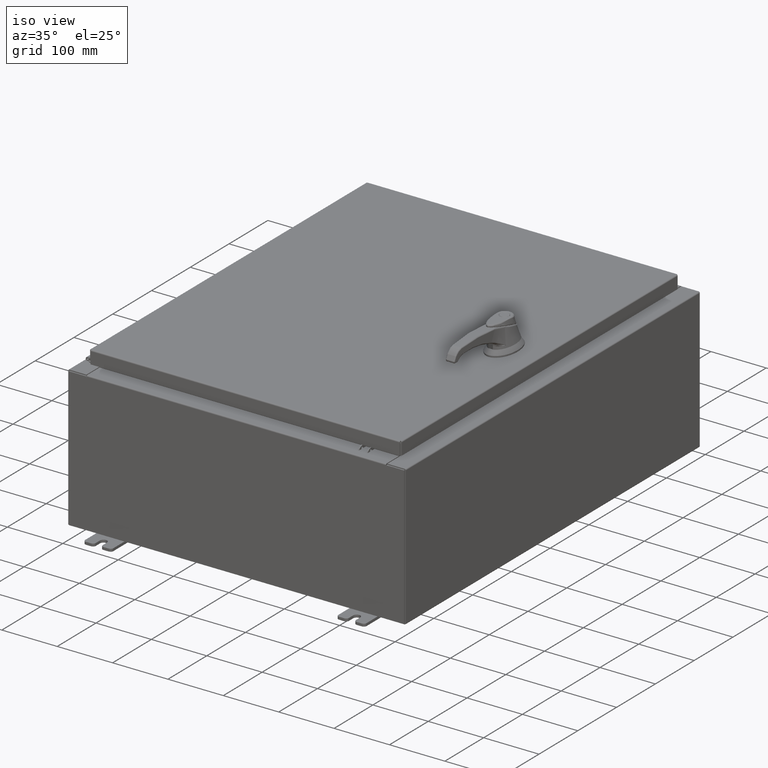
[diagram: clean part render]
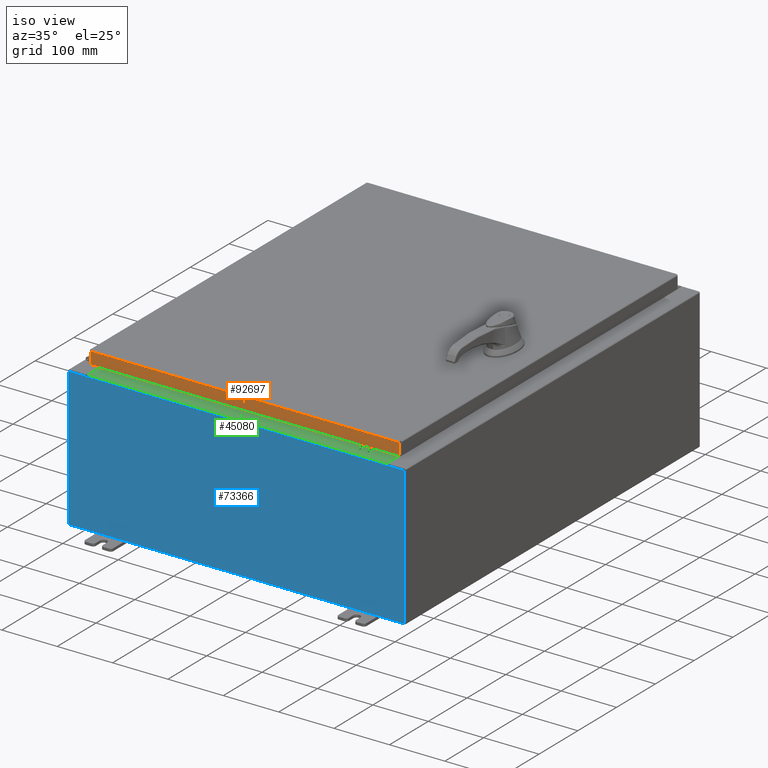
[diagram: same view with three faces highlighted in distinct colors, each labeled with its STEP entity id]
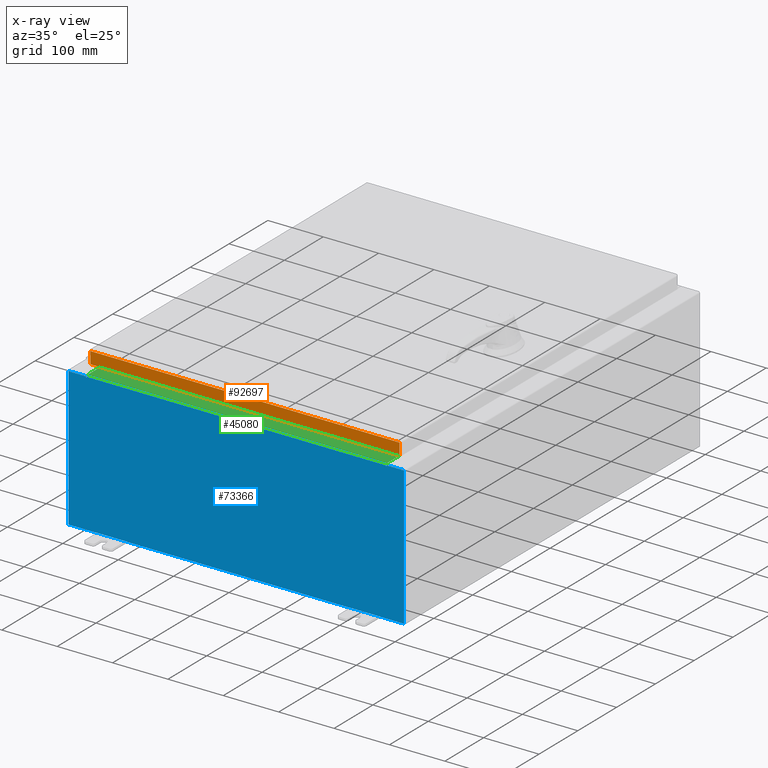
[diagram: x-ray of the same camera — body ghosted, the three highlighted faces saturated]
A machine part, iso view with three faces highlighted in distinct colors.
The next image is the same camera in x-ray (body ghosted, the three faces saturated) — at least one of them is partly hidden behind the body in this view.
Their STEP definitions:

[orange] entity #92697 — the highlighted planar face has unit normal (0, 1, -0).
#1595 = CARTESIAN_POINT ( 'NONE',  ( -10.98915786437626900, -14.09399999999999900, 3.595274007335028100E-014 ) ) ;
#10454 = LINE ( 'NONE', #25992, #58440 ) ;
#11060 = ORIENTED_EDGE ( 'NONE', *, *, #58870, .F. ) ;
#13251 = CARTESIAN_POINT ( 'NONE',  ( 10.98915786437624400, -14.09400000000000100, -0.08770000000000226200 ) ) ;
#17557 = ORIENTED_EDGE ( 'NONE', *, *, #113553, .F. ) ;
#25992 = CARTESIAN_POINT ( 'NONE',  ( 10.98915786437626900, -14.09400000000000100, -0.07469999999999980800 ) ) ;
#26220 = LINE ( 'NONE', #76780, #74307 ) ;
#31708 = CARTESIAN_POINT ( 'NONE',  ( 10.98915786437626900, -14.09400000000000300, -0.9376999999999997600 ) ) ;
#33038 = AXIS2_PLACEMENT_3D ( 'NONE', #97657, #43398, #106783 ) ;
#43398 = DIRECTION ( 'NONE',  ( 9.864047639156001700E-017, 1.000000000000000000, -2.532419924601866100E-015 ) ) ;
#53114 = FACE_OUTER_BOUND ( 'NONE', #109096, .T. ) ;
#54489 = VERTEX_POINT ( 'NONE', #31708 ) ;
#58440 = VECTOR ( 'NONE', #89270, 39.37007874015748100 ) ;
#58870 = EDGE_CURVE ( 'NONE', #113214, #84274, #26220, .T. ) ;
#59869 = ORIENTED_EDGE ( 'NONE', *, *, #91239, .T. ) ;
#60469 = EDGE_CURVE ( 'NONE', #84274, #54489, #10454, .T. ) ;
#62279 = DIRECTION ( 'NONE',  ( -1.000000000000000000, 9.864047639156033700E-017, 1.233005954894504400E-016 ) ) ;
#64720 = DIRECTION ( 'NONE',  ( 0.0000000000000000000, -2.532419924601866100E-015, -1.000000000000000000 ) ) ;
#72401 = ORIENTED_EDGE ( 'NONE', *, *, #60469, .F. ) ;
#74307 = VECTOR ( 'NONE', #112874, 39.37007874015748100 ) ;
#75234 = VECTOR ( 'NONE', #62279, 39.37007874015748100 ) ;
#76780 = CARTESIAN_POINT ( 'NONE',  ( 11.07799999999999900, -14.09400000000000100, -0.08770000000000226200 ) ) ;
#77632 = CARTESIAN_POINT ( 'NONE',  ( -10.98915786437626700, -14.09399999999999900, -0.08770000000000226200 ) ) ;
#79447 = PLANE ( 'NONE',  #33038 ) ;
#80172 = CARTESIAN_POINT ( 'NONE',  ( 11.07799999999999900, -14.09400000000000300, -0.9376999999999997600 ) ) ;
#84274 = VERTEX_POINT ( 'NONE', #13251 ) ;
#84464 = LINE ( 'NONE', #1595, #87311 ) ;
#87311 = VECTOR ( 'NONE', #64720, 39.37007874015748100 ) ;
#89270 = DIRECTION ( 'NONE',  ( 0.0000000000000000000, -2.532419924601866100E-015, -1.000000000000000000 ) ) ;
#91239 = EDGE_CURVE ( 'NONE', #113214, #93120, #84464, .T. ) ;
#92697 = ADVANCED_FACE ( 'NONE', ( #53114 ), #79447, .F. ) ;
#93120 = VERTEX_POINT ( 'NONE', #93205 ) ;
#93205 = CARTESIAN_POINT ( 'NONE',  ( -10.98915786437626700, -14.09400000000000100, -0.9376999999999970900 ) ) ;
#97657 = CARTESIAN_POINT ( 'NONE',  ( -1.390238874262646700E-015, -14.09399999999999900, 3.595274007335028100E-014 ) ) ;
#99342 = LINE ( 'NONE', #80172, #75234 ) ;
#106783 = DIRECTION ( 'NONE',  ( 0.0000000000000000000, 2.532419924601866100E-015, 1.000000000000000000 ) ) ;
#109096 = EDGE_LOOP ( 'NONE', ( #11060, #59869, #17557, #72401 ) ) ;
#112874 = DIRECTION ( 'NONE',  ( 1.000000000000000000, -9.864047639156004100E-017, -7.444398091725593800E-046 ) ) ;
#113214 = VERTEX_POINT ( 'NONE', #77632 ) ;
#113553 = EDGE_CURVE ( 'NONE', #54489, #93120, #99342, .T. ) ;

[blue] entity #73366 — the highlighted planar face has unit normal (-0, 1, -0).
#397 = DIRECTION ( 'NONE',  ( -0.0000000000000000000, 1.000000000000000000, -0.0000000000000000000 ) ) ;
#573 = ORIENTED_EDGE ( 'NONE', *, *, #68926, .F. ) ;
#872 = VECTOR ( 'NONE', #70039, 39.37007874015748100 ) ;
#1103 = DIRECTION ( 'NONE',  ( -0.0000000000000000000, 1.000000000000000000, -0.0000000000000000000 ) ) ;
#2410 = EDGE_CURVE ( 'NONE', #69214, #77388, #109041, .T. ) ;
#2665 = ORIENTED_EDGE ( 'NONE', *, *, #86154, .T. ) ;
#5079 = DIRECTION ( 'NONE',  ( -4.340572780400004900E-014, 0.0000000000000000000, -1.000000000000000000 ) ) ;
#6340 = VECTOR ( 'NONE', #49441, 39.37007874015748100 ) ;
#6341 = DIRECTION ( 'NONE',  ( 1.000000000000000000, 0.0000000000000000000, 0.0000000000000000000 ) ) ;
#6395 = LINE ( 'NONE', #99244, #97000 ) ;
#8036 = CARTESIAN_POINT ( 'NONE',  ( 11.92530000000000000, 0.0000000000000000000, 4.925300000000000000 ) ) ;
#12870 = FACE_OUTER_BOUND ( 'NONE', #65819, .T. ) ;
#13948 = AXIS2_PLACEMENT_3D ( 'NONE', #54422, #397, #63527 ) ;
#15416 = ORIENTED_EDGE ( 'NONE', *, *, #46224, .T. ) ;
#15477 = CARTESIAN_POINT ( 'NONE',  ( -11.92530000000000000, 0.0000000000000000000, 4.925300000000000000 ) ) ;
#16254 = VECTOR ( 'NONE', #5079, 39.37007874015748100 ) ;
#18562 = LINE ( 'NONE', #88377, #82185 ) ;
#19017 = CARTESIAN_POINT ( 'NONE',  ( 10.63720000000000400, 0.0000000000000000000, 4.874950000000000100 ) ) ;
#20921 = EDGE_CURVE ( 'NONE', #95546, #95087, #24855, .T. ) ;
#23794 = LINE ( 'NONE', #15477, #50631 ) ;
#24855 = LINE ( 'NONE', #97019, #872 ) ;
#24924 = VERTEX_POINT ( 'NONE', #46041 ) ;
#26592 = CARTESIAN_POINT ( 'NONE',  ( 10.67455000000000200, 0.0000000000000000000, 4.874950000000000100 ) ) ;
#28659 = CARTESIAN_POINT ( 'NONE',  ( -10.67455000000000200, 0.0000000000000000000, 4.874950000000000100 ) ) ;
#30413 = LINE ( 'NONE', #31306, #6340 ) ;
#31306 = CARTESIAN_POINT ( 'NONE',  ( -11.92530000000000000, 0.0000000000000000000, 4.925300000000000000 ) ) ;
#33501 = DIRECTION ( 'NONE',  ( 1.000000000000000000, 0.0000000000000000000, 0.0000000000000000000 ) ) ;
#35807 = CARTESIAN_POINT ( 'NONE',  ( -10.63720000000000400, -7.171100983368691200E-016, 4.912300000000000100 ) ) ;
#36705 = EDGE_CURVE ( 'NONE', #97937, #69214, #102114, .T. ) ;
#36766 = VECTOR ( 'NONE', #38262, 39.37007874015748100 ) ;
#37047 = EDGE_CURVE ( 'NONE', #67649, #97937, #18562, .T. ) ;
#38262 = DIRECTION ( 'NONE',  ( 0.0000000000000000000, 0.0000000000000000000, 1.000000000000000000 ) ) ;
#38577 = DIRECTION ( 'NONE',  ( 0.0000000000000000000, -1.000000000000000000, 0.0000000000000000000 ) ) ;
#40335 = LINE ( 'NONE', #99001, #88473 ) ;
#41324 = CARTESIAN_POINT ( 'NONE',  ( 10.67455000000000200, 0.0000000000000000000, 4.925300000000000000 ) ) ;
#44990 = DIRECTION ( 'NONE',  ( 0.0000000000000000000, 0.0000000000000000000, -1.000000000000000000 ) ) ;
#46041 = CARTESIAN_POINT ( 'NONE',  ( -11.92530000000000000, 0.0000000000000000000, 4.925300000000000000 ) ) ;
#46224 = EDGE_CURVE ( 'NONE', #95087, #24924, #30413, .T. ) ;
#47789 = ORIENTED_EDGE ( 'NONE', *, *, #55184, .T. ) ;
#48793 = ORIENTED_EDGE ( 'NONE', *, *, #2410, .F. ) ;
#49441 = DIRECTION ( 'NONE',  ( -0.0000000000000000000, -0.0000000000000000000, 1.000000000000000000 ) ) ;
#50631 = VECTOR ( 'NONE', #6341, 39.37007874015748100 ) ;
#52341 = DIRECTION ( 'NONE',  ( 0.0000000000000000000, 0.0000000000000000000, -1.000000000000000000 ) ) ;
#53800 = DIRECTION ( 'NONE',  ( 0.0000000000000000000, 0.0000000000000000000, 1.000000000000000000 ) ) ;
#53941 = AXIS2_PLACEMENT_3D ( 'NONE', #56270, #38577, #101929 ) ;
#54422 = CARTESIAN_POINT ( 'NONE',  ( 10.65587500000000200, 0.0000000000000000000, 4.874950000000000100 ) ) ;
#54857 = VERTEX_POINT ( 'NONE', #19017 ) ;
#55125 = CARTESIAN_POINT ( 'NONE',  ( -10.65587500000000200, 0.0000000000000000000, 4.874950000000000100 ) ) ;
#55184 = EDGE_CURVE ( 'NONE', #24924, #77388, #87335, .T. ) ;
#56270 = CARTESIAN_POINT ( 'NONE',  ( 0.0000000000000000000, 0.0000000000000000000, 0.0000000000000000000 ) ) ;
#62153 = VERTEX_POINT ( 'NONE', #96626 ) ;
#63527 = DIRECTION ( 'NONE',  ( 0.0000000000000000000, 0.0000000000000000000, -1.000000000000000000 ) ) ;
#63758 = VECTOR ( 'NONE', #90010, 39.37007874015748100 ) ;
#64243 = DIRECTION ( 'NONE',  ( 0.0000000000000000000, 0.0000000000000000000, -1.000000000000000000 ) ) ;
#64771 = ORIENTED_EDGE ( 'NONE', *, *, #76961, .T. ) ;
#65129 = CARTESIAN_POINT ( 'NONE',  ( -10.63720000000000400, -7.171100983368691200E-016, 4.912300000000000100 ) ) ;
#65819 = EDGE_LOOP ( 'NONE', ( #48793, #73054, #114930, #72150, #82548, #67895, #573, #2665, #64771, #108842, #15416, #47789 ) ) ;
#67649 = VERTEX_POINT ( 'NONE', #65129 ) ;
#67895 = ORIENTED_EDGE ( 'NONE', *, *, #99743, .F. ) ;
#68926 = EDGE_CURVE ( 'NONE', #83058, #112187, #88414, .T. ) ;
#69214 = VERTEX_POINT ( 'NONE', #28659 ) ;
#70039 = DIRECTION ( 'NONE',  ( -1.000000000000000000, -0.0000000000000000000, -0.0000000000000000000 ) ) ;
#72150 = ORIENTED_EDGE ( 'NONE', *, *, #86946, .T. ) ;
#73054 = ORIENTED_EDGE ( 'NONE', *, *, #36705, .F. ) ;
#73366 = ADVANCED_FACE ( 'NONE', ( #12870 ), #92775, .F. ) ;
#76699 = CARTESIAN_POINT ( 'NONE',  ( 11.92530000000000000, 0.0000000000000000000, -4.925300000000000000 ) ) ;
#76961 = EDGE_CURVE ( 'NONE', #105955, #95546, #6395, .T. ) ;
#77388 = VERTEX_POINT ( 'NONE', #106256 ) ;
#82185 = VECTOR ( 'NONE', #52341, 39.37007874015748100 ) ;
#82548 = ORIENTED_EDGE ( 'NONE', *, *, #93375, .F. ) ;
#83058 = VERTEX_POINT ( 'NONE', #41324 ) ;
#86154 = EDGE_CURVE ( 'NONE', #83058, #105955, #23794, .T. ) ;
#86946 = EDGE_CURVE ( 'NONE', #67649, #62153, #106329, .T. ) ;
#87335 = LINE ( 'NONE', #96830, #108651 ) ;
#88377 = CARTESIAN_POINT ( 'NONE',  ( -10.63720000000000400, -0.0000000000000000000, 0.0000000000000000000 ) ) ;
#88414 = LINE ( 'NONE', #113539, #16254 ) ;
#88473 = VECTOR ( 'NONE', #53800, 39.37007874015748100 ) ;
#90010 = DIRECTION ( 'NONE',  ( 1.000000000000000000, 0.0000000000000000000, 0.0000000000000000000 ) ) ;
#92775 = PLANE ( 'NONE',  #53941 ) ;
#93375 = EDGE_CURVE ( 'NONE', #54857, #62153, #40335, .T. ) ;
#93923 = AXIS2_PLACEMENT_3D ( 'NONE', #55125, #1103, #64243 ) ;
#93993 = CARTESIAN_POINT ( 'NONE',  ( -10.67455000000000200, -0.0000000000000000000, 0.0000000000000000000 ) ) ;
#95087 = VERTEX_POINT ( 'NONE', #117207 ) ;
#95546 = VERTEX_POINT ( 'NONE', #76699 ) ;
#96626 = CARTESIAN_POINT ( 'NONE',  ( 10.63720000000000400, 0.0000000000000000000, 4.912300000000000100 ) ) ;
#96830 = CARTESIAN_POINT ( 'NONE',  ( -11.92530000000000000, 0.0000000000000000000, 4.925300000000000000 ) ) ;
#97000 = VECTOR ( 'NONE', #44990, 39.37007874015748100 ) ;
#97019 = CARTESIAN_POINT ( 'NONE',  ( -11.92530000000000000, 0.0000000000000000000, -4.925300000000000000 ) ) ;
#97937 = VERTEX_POINT ( 'NONE', #112110 ) ;
#99001 = CARTESIAN_POINT ( 'NONE',  ( 10.63720000000000400, 0.0000000000000000000, 0.0000000000000000000 ) ) ;
#99018 = CIRCLE ( 'NONE', #13948, 0.01867499999999949400 ) ;
#99244 = CARTESIAN_POINT ( 'NONE',  ( 11.92530000000000000, 0.0000000000000000000, 4.925300000000000000 ) ) ;
#99743 = EDGE_CURVE ( 'NONE', #112187, #54857, #99018, .T. ) ;
#101929 = DIRECTION ( 'NONE',  ( 0.0000000000000000000, -0.0000000000000000000, -1.000000000000000000 ) ) ;
#102114 = CIRCLE ( 'NONE', #93923, 0.01867499999999949400 ) ;
#105955 = VERTEX_POINT ( 'NONE', #8036 ) ;
#106256 = CARTESIAN_POINT ( 'NONE',  ( -10.67455000000000200, 0.0000000000000000000, 4.925300000000000000 ) ) ;
#106329 = LINE ( 'NONE', #35807, #63758 ) ;
#108651 = VECTOR ( 'NONE', #33501, 39.37007874015748100 ) ;
#108842 = ORIENTED_EDGE ( 'NONE', *, *, #20921, .T. ) ;
#109041 = LINE ( 'NONE', #93993, #36766 ) ;
#112110 = CARTESIAN_POINT ( 'NONE',  ( -10.63720000000000400, -0.0000000000000000000, 4.874950000000000100 ) ) ;
#112187 = VERTEX_POINT ( 'NONE', #26592 ) ;
#113539 = CARTESIAN_POINT ( 'NONE',  ( 10.67454999999979000, -0.0000000000000000000, -4.633366117301795800E-013 ) ) ;
#114930 = ORIENTED_EDGE ( 'NONE', *, *, #37047, .F. ) ;
#117207 = CARTESIAN_POINT ( 'NONE',  ( -11.92530000000000000, 0.0000000000000000000, -4.925300000000000000 ) ) ;

[green] entity #45080 — the highlighted planar face has unit normal (-0, -0, 1).
#13626 = LINE ( 'NONE', #106225, #58779 ) ;
#16914 = CARTESIAN_POINT ( 'NONE',  ( -10.63720000000000200, -0.08770000000000081900, 5.000000000000000000 ) ) ;
#18116 = CARTESIAN_POINT ( 'NONE',  ( 4.504626575497439200E-018, -0.08770000000000081900, 5.000000000000000000 ) ) ;
#20332 = EDGE_CURVE ( 'NONE', #109960, #110925, #13626, .T. ) ;
#22101 = LINE ( 'NONE', #68711, #67331 ) ;
#25122 = CARTESIAN_POINT ( 'NONE',  ( 10.63720000000000200, -1.287299999999999900, 5.000000000000004400 ) ) ;
#25630 = EDGE_LOOP ( 'NONE', ( #35446, #74004, #50239, #52012 ) ) ;
#26487 = LINE ( 'NONE', #18116, #77420 ) ;
#33860 = DIRECTION ( 'NONE',  ( 0.0000000000000000000, 3.566381192773190000E-015, 1.000000000000000000 ) ) ;
#35446 = ORIENTED_EDGE ( 'NONE', *, *, #67970, .F. ) ;
#36919 = CARTESIAN_POINT ( 'NONE',  ( -10.63720000000000200, -0.07469999999999973900, 5.000000000000000000 ) ) ;
#40531 = DIRECTION ( 'NONE',  ( -0.0000000000000000000, -1.000000000000000000, 3.566381192773190000E-015 ) ) ;
#42173 = CARTESIAN_POINT ( 'NONE',  ( 0.0000000000000000000, 1.782631094477737600E-014, 5.000000000000000000 ) ) ;
#45080 = ADVANCED_FACE ( 'NONE', ( #74420 ), #78973, .T. ) ;
#46057 = VECTOR ( 'NONE', #100236, 39.37007874015748100 ) ;
#50239 = ORIENTED_EDGE ( 'NONE', *, *, #20332, .F. ) ;
#52012 = ORIENTED_EDGE ( 'NONE', *, *, #74943, .T. ) ;
#56309 = EDGE_CURVE ( 'NONE', #110925, #92454, #22101, .T. ) ;
#58779 = VECTOR ( 'NONE', #40531, 39.37007874015748100 ) ;
#67331 = VECTOR ( 'NONE', #77859, 39.37007874015748100 ) ;
#67970 = EDGE_CURVE ( 'NONE', #92454, #73185, #94205, .T. ) ;
#68711 = CARTESIAN_POINT ( 'NONE',  ( 10.63720000000000400, -1.287299999999999900, 5.000000000000003600 ) ) ;
#72249 = DIRECTION ( 'NONE',  ( -1.000000000000000000, -5.136404305013091600E-017, 1.831837571187793700E-031 ) ) ;
#73185 = VERTEX_POINT ( 'NONE', #16914 ) ;
#74004 = ORIENTED_EDGE ( 'NONE', *, *, #56309, .F. ) ;
#74420 = FACE_OUTER_BOUND ( 'NONE', #25630, .T. ) ;
#74943 = EDGE_CURVE ( 'NONE', #109960, #73185, #26487, .T. ) ;
#77420 = VECTOR ( 'NONE', #72249, 39.37007874015748100 ) ;
#77859 = DIRECTION ( 'NONE',  ( -1.000000000000000000, 0.0000000000000000000, 0.0000000000000000000 ) ) ;
#78973 = PLANE ( 'NONE',  #81434 ) ;
#81434 = AXIS2_PLACEMENT_3D ( 'NONE', #42173, #33860, #97181 ) ;
#85007 = CARTESIAN_POINT ( 'NONE',  ( -10.63720000000000200, -1.287299999999999200, 5.000000000000004400 ) ) ;
#92454 = VERTEX_POINT ( 'NONE', #85007 ) ;
#94205 = LINE ( 'NONE', #36919, #46057 ) ;
#97181 = DIRECTION ( 'NONE',  ( 0.0000000000000000000, -1.000000000000000000, 3.566381192773190000E-015 ) ) ;
#100236 = DIRECTION ( 'NONE',  ( -0.0000000000000000000, 1.000000000000000000, -3.566381192773190000E-015 ) ) ;
#106225 = CARTESIAN_POINT ( 'NONE',  ( 10.63720000000000200, -1.300299999999999800, 5.000000000000004400 ) ) ;
#109960 = VERTEX_POINT ( 'NONE', #114857 ) ;
#110925 = VERTEX_POINT ( 'NONE', #25122 ) ;
#114857 = CARTESIAN_POINT ( 'NONE',  ( 10.63720000000000400, -0.08770000000000047200, 5.000000000000000000 ) ) ;